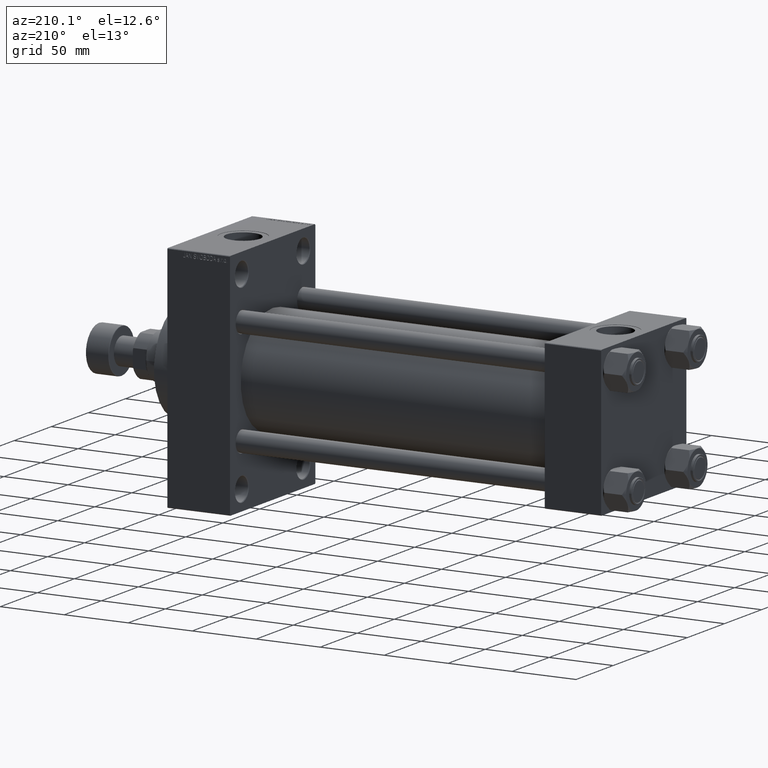
[diagram: clean part render]
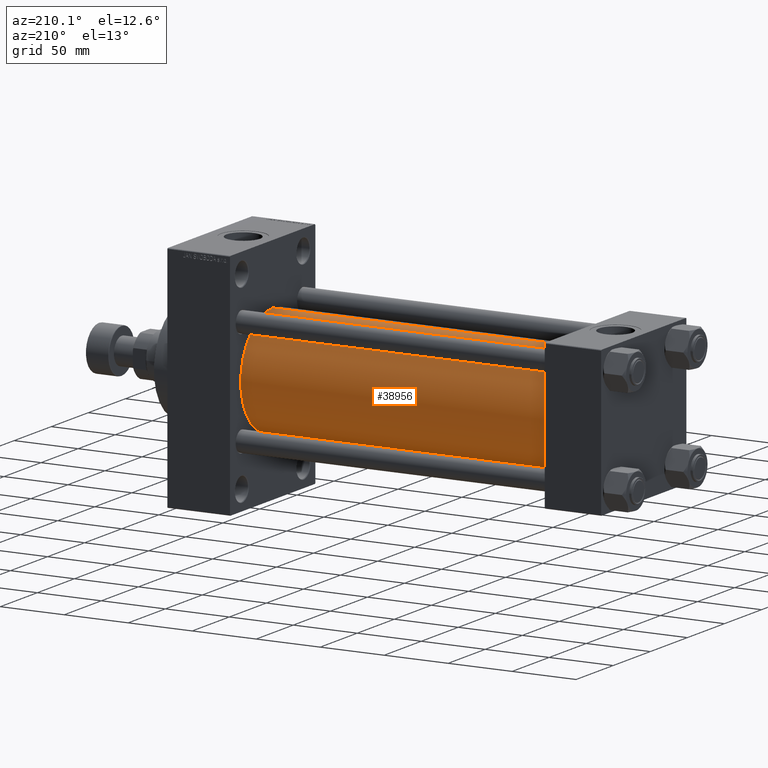
[diagram: same view with one face highlighted and labeled with its STEP entity id]
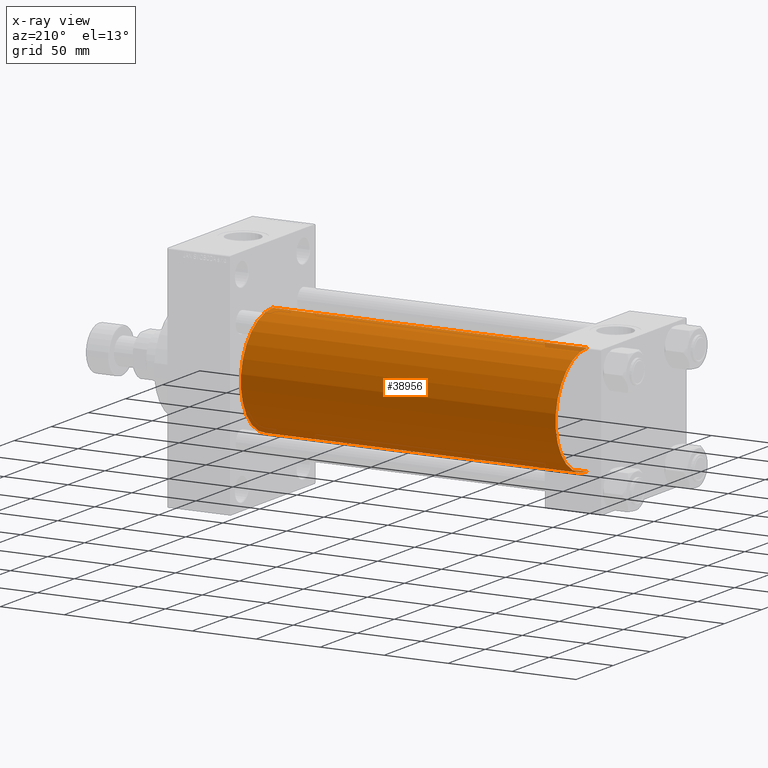
[diagram: x-ray of the same camera — body ghosted, the highlighted face saturated]
A machine part, auxiliary view. The second image highlights one B-rep face of the part: STEP entity #38956.
The next image is the same camera in x-ray: the body ghosted, the highlighted face saturated — about 1% of this face is hidden behind the body in this view.
In plain terms, the highlighted cylindrical surface (partial cylindrical patch) has radius 43 mm, axis along (-1, -0, -0).
Its self-contained STEP definition (entity closure, byte-faithful):
#1804 = CARTESIAN_POINT ( 'NONE',  ( 43.99999999999998579, -2.602085213965210642E-15, 0.000000000000000000 ) ) ;
#2939 = CIRCLE ( 'NONE', #36357, 43.00000000000000000 ) ;
#3697 = CARTESIAN_POINT ( 'NONE',  ( 290.0000000000000000, -2.602085213965210642E-15, 43.00000000000000000 ) ) ;
#3899 = EDGE_CURVE ( 'NONE', #43879, #19838, #5825, .T. ) ;
#4810 = CARTESIAN_POINT ( 'NONE',  ( 290.0000000000000000, 2.663896022368408223E-15, -43.00000000000000000 ) ) ;
#4851 = CIRCLE ( 'NONE', #34380, 43.00000000000000000 ) ;
#5155 = EDGE_CURVE ( 'NONE', #19838, #6291, #2939, .T. ) ;
#5335 = CARTESIAN_POINT ( 'NONE',  ( 290.0000000000000000, -2.602085213965210642E-15, 0.000000000000000000 ) ) ;
#5434 = ORIENTED_EDGE ( 'NONE', *, *, #3899, .T. ) ;
#5825 = LINE ( 'NONE', #39896, #13777 ) ;
#6291 = VERTEX_POINT ( 'NONE', #12730 ) ;
#7306 = EDGE_LOOP ( 'NONE', ( #16143, #5434, #25483, #39758 ) ) ;
#8870 = DIRECTION ( 'NONE',  ( 1.000000000000000000, -0.000000000000000000, 0.000000000000000000 ) ) ;
#10288 = DIRECTION ( 'NONE',  ( -1.000000000000000000, -0.000000000000000000, -0.000000000000000000 ) ) ;
#12730 = CARTESIAN_POINT ( 'NONE',  ( 43.99999999999998579, -2.602085213965210642E-15, 43.00000000000000000 ) ) ;
#13777 = VECTOR ( 'NONE', #35738, 1000.000000000000000 ) ;
#14381 = DIRECTION ( 'NONE',  ( 1.000000000000000000, 0.000000000000000000, 0.000000000000000000 ) ) ;
#15463 = EDGE_CURVE ( 'NONE', #43879, #47506, #4851, .T. ) ;
#16143 = ORIENTED_EDGE ( 'NONE', *, *, #15463, .F. ) ;
#16520 = DIRECTION ( 'NONE',  ( 0.000000000000000000, 0.000000000000000000, 1.000000000000000000 ) ) ;
#18756 = DIRECTION ( 'NONE',  ( 0.000000000000000000, 0.000000000000000000, -1.000000000000000000 ) ) ;
#19571 = DIRECTION ( 'NONE',  ( 0.000000000000000000, 0.000000000000000000, 1.000000000000000000 ) ) ;
#19838 = VERTEX_POINT ( 'NONE', #37198 ) ;
#21239 = LINE ( 'NONE', #24894, #33601 ) ;
#21696 = CARTESIAN_POINT ( 'NONE',  ( 290.0000000000000000, -2.602085213965210642E-15, 0.000000000000000000 ) ) ;
#23699 = AXIS2_PLACEMENT_3D ( 'NONE', #5335, #34770, #16520 ) ;
#23834 = FACE_OUTER_BOUND ( 'NONE', #7306, .T. ) ;
#24894 = CARTESIAN_POINT ( 'NONE',  ( 290.0000000000000000, -2.602085213965210642E-15, 43.00000000000000000 ) ) ;
#25483 = ORIENTED_EDGE ( 'NONE', *, *, #5155, .T. ) ;
#28951 = EDGE_CURVE ( 'NONE', #47506, #6291, #21239, .T. ) ;
#33601 = VECTOR ( 'NONE', #10288, 1000.000000000000000 ) ;
#34380 = AXIS2_PLACEMENT_3D ( 'NONE', #21696, #14381, #18756 ) ;
#34770 = DIRECTION ( 'NONE',  ( -1.000000000000000000, -0.000000000000000000, -0.000000000000000000 ) ) ;
#35738 = DIRECTION ( 'NONE',  ( -1.000000000000000000, -0.000000000000000000, -0.000000000000000000 ) ) ;
#36357 = AXIS2_PLACEMENT_3D ( 'NONE', #1804, #8870, #19571 ) ;
#37198 = CARTESIAN_POINT ( 'NONE',  ( 43.99999999999998579, 2.663896022368408223E-15, -43.00000000000000000 ) ) ;
#38956 = ADVANCED_FACE ( 'NONE', ( #23834 ), #41856, .T. ) ;
#39758 = ORIENTED_EDGE ( 'NONE', *, *, #28951, .F. ) ;
#39896 = CARTESIAN_POINT ( 'NONE',  ( 290.0000000000000000, 2.663896022368408223E-15, -43.00000000000000000 ) ) ;
#41856 = CYLINDRICAL_SURFACE ( 'NONE', #23699, 43.00000000000000000 ) ;
#43879 = VERTEX_POINT ( 'NONE', #4810 ) ;
#47506 = VERTEX_POINT ( 'NONE', #3697 ) ;